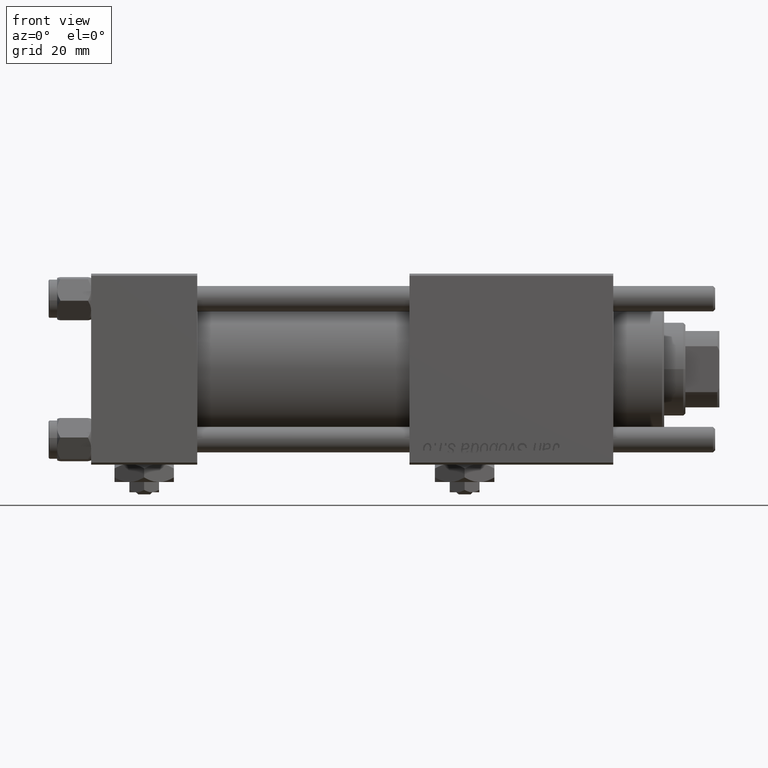
[diagram: clean part render]
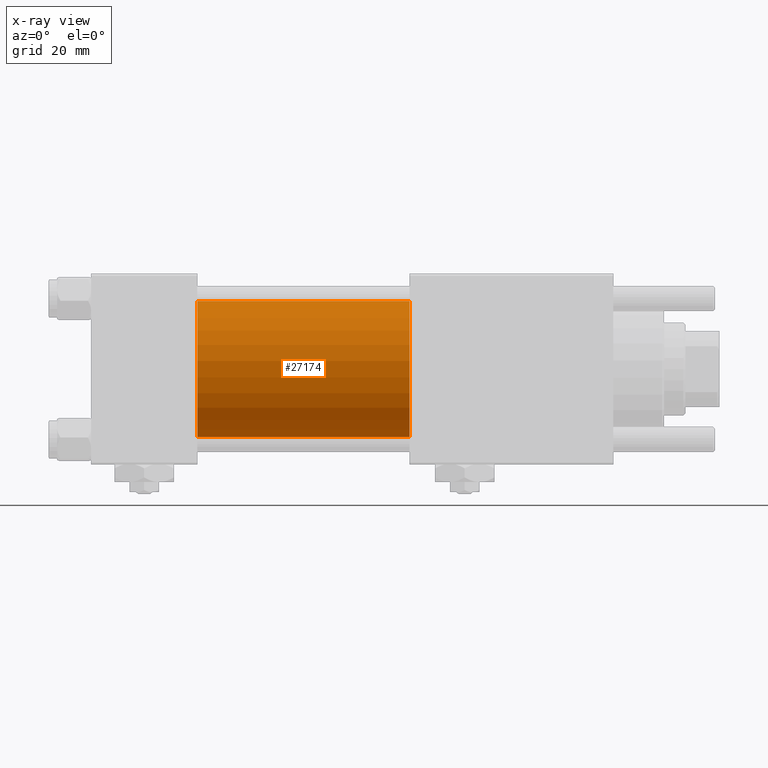
[diagram: x-ray — body ghosted, one internal face saturated and labeled with its STEP entity id]
A machine part, front view, then the same camera in x-ray: the body is ghosted and one INTERNAL B-rep face — a face not visible from any outside direction — is saturated and labeled: STEP entity #27174.
In plain terms, the highlighted cylindrical surface (partial cylindrical patch) has radius 16 mm, axis along (-1, -0, -0).
Its self-contained STEP definition (entity closure, byte-faithful):
#1285 = ORIENTED_EDGE ( 'NONE', *, *, #32553, .T. ) ;
#3044 = VERTEX_POINT ( 'NONE', #20137 ) ;
#3219 = CARTESIAN_POINT ( 'NONE',  ( 25.00000000000000000, -2.602085213965210642E-15, 0.000000000000000000 ) ) ;
#3284 = AXIS2_PLACEMENT_3D ( 'NONE', #4140, #21386, #30900 ) ;
#3408 = CARTESIAN_POINT ( 'NONE',  ( 75.00000000000001421, -2.602085213965210642E-15, 16.00000000000000000 ) ) ;
#4140 = CARTESIAN_POINT ( 'NONE',  ( 75.00000000000001421, -2.602085213965210642E-15, 0.000000000000000000 ) ) ;
#5354 = CYLINDRICAL_SURFACE ( 'NONE', #31599, 16.00000000000000000 ) ;
#5459 = ORIENTED_EDGE ( 'NONE', *, *, #17505, .F. ) ;
#9458 = EDGE_CURVE ( 'NONE', #15128, #39403, #44535, .T. ) ;
#10439 = EDGE_LOOP ( 'NONE', ( #1285, #24558, #44547, #5459 ) ) ;
#13690 = DIRECTION ( 'NONE',  ( -1.000000000000000000, -0.000000000000000000, -0.000000000000000000 ) ) ;
#14076 = VECTOR ( 'NONE', #50487, 1000.000000000000000 ) ;
#14195 = VECTOR ( 'NONE', #58436, 1000.000000000000000 ) ;
#15128 = VERTEX_POINT ( 'NONE', #56460 ) ;
#16888 = DIRECTION ( 'NONE',  ( 0.000000000000000000, 0.000000000000000000, -1.000000000000000000 ) ) ;
#17180 = DIRECTION ( 'NONE',  ( 1.000000000000000000, 0.000000000000000000, 0.000000000000000000 ) ) ;
#17505 = EDGE_CURVE ( 'NONE', #29548, #3044, #22121, .T. ) ;
#18477 = CIRCLE ( 'NONE', #3284, 16.00000000000000000 ) ;
#19531 = CARTESIAN_POINT ( 'NONE',  ( 25.00000000000000000, -6.426503353294456087E-16, -16.00000000000000000 ) ) ;
#20137 = CARTESIAN_POINT ( 'NONE',  ( 25.00000000000000000, -2.602085213965210642E-15, 16.00000000000000000 ) ) ;
#21386 = DIRECTION ( 'NONE',  ( 1.000000000000000000, 0.000000000000000000, 0.000000000000000000 ) ) ;
#21921 = CARTESIAN_POINT ( 'NONE',  ( 75.00000000000001421, -6.426503353294456087E-16, -16.00000000000000000 ) ) ;
#22121 = LINE ( 'NONE', #3408, #14195 ) ;
#23916 = EDGE_CURVE ( 'NONE', #3044, #39403, #28614, .T. ) ;
#24558 = ORIENTED_EDGE ( 'NONE', *, *, #9458, .T. ) ;
#26586 = CARTESIAN_POINT ( 'NONE',  ( 75.00000000000001421, -2.602085213965210642E-15, 16.00000000000000000 ) ) ;
#27174 = ADVANCED_FACE ( 'NONE', ( #32997 ), #5354, .F. ) ;
#27366 = CARTESIAN_POINT ( 'NONE',  ( 75.00000000000001421, -2.602085213965210642E-15, 0.000000000000000000 ) ) ;
#28614 = CIRCLE ( 'NONE', #33378, 16.00000000000000000 ) ;
#29548 = VERTEX_POINT ( 'NONE', #26586 ) ;
#30900 = DIRECTION ( 'NONE',  ( 0.000000000000000000, 0.000000000000000000, -1.000000000000000000 ) ) ;
#31599 = AXIS2_PLACEMENT_3D ( 'NONE', #27366, #13690, #55329 ) ;
#32553 = EDGE_CURVE ( 'NONE', #29548, #15128, #18477, .T. ) ;
#32997 = FACE_OUTER_BOUND ( 'NONE', #10439, .T. ) ;
#33378 = AXIS2_PLACEMENT_3D ( 'NONE', #3219, #17180, #16888 ) ;
#39403 = VERTEX_POINT ( 'NONE', #19531 ) ;
#44535 = LINE ( 'NONE', #21921, #14076 ) ;
#44547 = ORIENTED_EDGE ( 'NONE', *, *, #23916, .F. ) ;
#50487 = DIRECTION ( 'NONE',  ( -1.000000000000000000, -0.000000000000000000, -0.000000000000000000 ) ) ;
#55329 = DIRECTION ( 'NONE',  ( 0.000000000000000000, 0.000000000000000000, 1.000000000000000000 ) ) ;
#56460 = CARTESIAN_POINT ( 'NONE',  ( 75.00000000000001421, -6.426503353294456087E-16, -16.00000000000000000 ) ) ;
#58436 = DIRECTION ( 'NONE',  ( -1.000000000000000000, -0.000000000000000000, -0.000000000000000000 ) ) ;